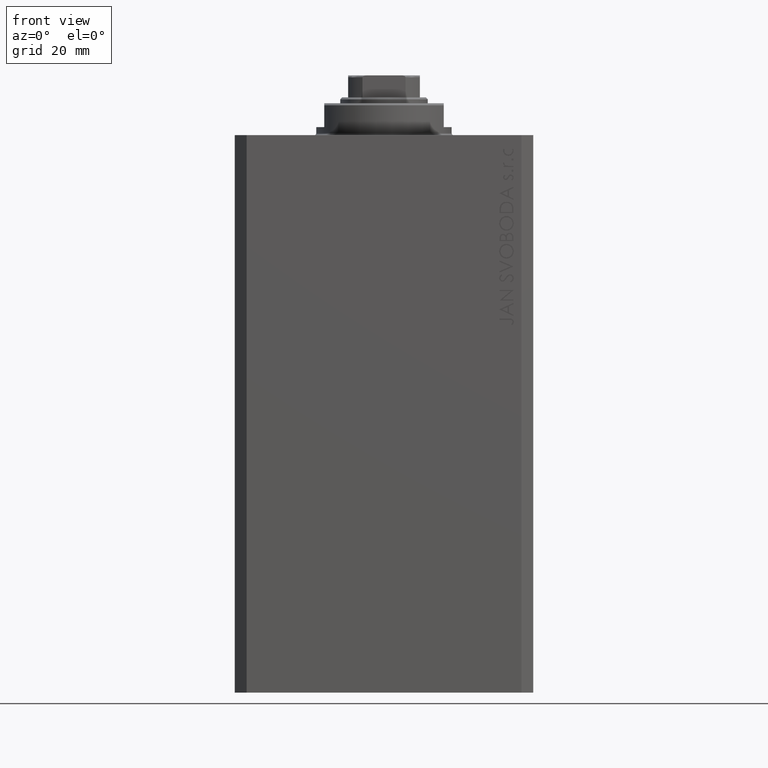
[diagram: clean part render]
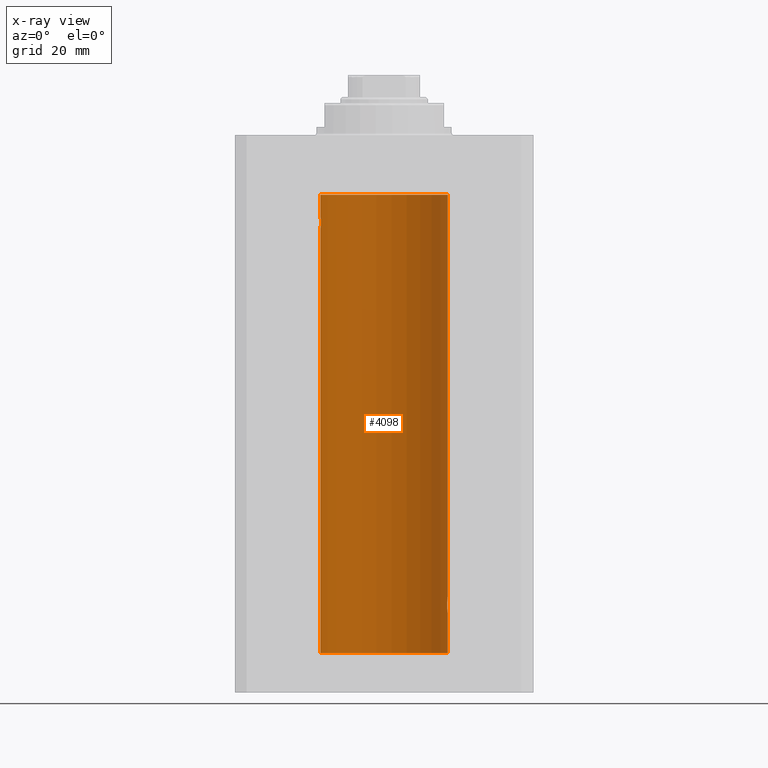
[diagram: x-ray — body ghosted, one internal face saturated and labeled with its STEP entity id]
A machine part, front view, then the same camera in x-ray: the body is ghosted and one INTERNAL B-rep face — a face not visible from any outside direction — is saturated and labeled: STEP entity #4098.
In plain terms, the highlighted cylindrical surface (partial cylindrical patch) has radius 16 mm, axis along (0, 0, 1).
Its self-contained STEP definition (entity closure, byte-faithful):
#449 = EDGE_CURVE ( 'NONE', #32171, #32170, #32908, .T. ) ;
#874 = CARTESIAN_POINT ( 'NONE',  ( -15.94564302722881877, 1.321075116345886924, -23.50737160312428742 ) ) ;
#1481 = VERTEX_POINT ( 'NONE', #32381 ) ;
#2007 = CARTESIAN_POINT ( 'NONE',  ( 15.97582125337101999, 0.8876008124445644576, -119.7970409061775143 ) ) ;
#2400 = EDGE_CURVE ( 'NONE', #12641, #32171, #9932, .T. ) ;
#2567 = CIRCLE ( 'NONE', #36698, 16.00000000000000000 ) ;
#2621 = DIRECTION ( 'NONE',  ( -0.000000000000000000, -0.000000000000000000, 1.000000000000000000 ) ) ;
#2801 = LINE ( 'NONE', #32411, #42723 ) ;
#2943 = CARTESIAN_POINT ( 'NONE',  ( 15.87450786638750699, 2.000000000000297096, -118.0000000000000284 ) ) ;
#3610 = CARTESIAN_POINT ( 'NONE',  ( 15.99207203775707065, 0.5197027266689088210, -116.0642796061806337 ) ) ;
#3778 = CARTESIAN_POINT ( 'NONE',  ( -16.00000000000000000, 1.959434878635765131E-15, -130.0999999999999943 ) ) ;
#4098 = ADVANCED_FACE ( 'NONE', ( #16263 ), #16492, .F. ) ;
#4211 = CARTESIAN_POINT ( 'NONE',  ( -15.95377581882983442, 1.220169175415122931, -23.59001528100121803 ) ) ;
#4321 = CARTESIAN_POINT ( 'NONE',  ( 15.96887171920781689, 1.003448269354837441, -116.2650518254207412 ) ) ;
#4451 = CARTESIAN_POINT ( 'NONE',  ( -15.87616016863256618, 1.987008272775798723, -22.26251583007899626 ) ) ;
#4689 = CARTESIAN_POINT ( 'NONE',  ( -15.92099550861380131, 1.598790766515155282, -20.77043888260214644 ) ) ;
#5418 = AXIS2_PLACEMENT_3D ( 'NONE', #41581, #19832, #34178 ) ;
#5598 = CARTESIAN_POINT ( 'NONE',  ( 15.99999999999999645, 0.1323149458028788361, -120.0000000000000426 ) ) ;
#5921 = DIRECTION ( 'NONE',  ( 0.000000000000000000, 0.000000000000000000, 1.000000000000000000 ) ) ;
#6050 = CARTESIAN_POINT ( 'NONE',  ( 16.00000000000000000, 0.000000000000000000, -130.0999999999999943 ) ) ;
#6057 = CARTESIAN_POINT ( 'NONE',  ( 15.96893716441426214, 1.002454028984434808, -119.7355604244121707 ) ) ;
#6282 = VERTEX_POINT ( 'NONE', #41641 ) ;
#7815 = LINE ( 'NONE', #40052, #20762 ) ;
#8032 = CARTESIAN_POINT ( 'NONE',  ( -15.88709929148890510, 1.898058445420892637, -22.64386968033013403 ) ) ;
#8267 = CARTESIAN_POINT ( 'NONE',  ( -15.97587307151818159, 0.8866640484200133399, -23.79749928605040665 ) ) ;
#8726 = CARTESIAN_POINT ( 'NONE',  ( -15.96885838080210362, 1.003662148334370174, -23.73482670674955486 ) ) ;
#9106 = ORIENTED_EDGE ( 'NONE', *, *, #449, .F. ) ;
#9686 = VERTEX_POINT ( 'NONE', #11402 ) ;
#9932 = CIRCLE ( 'NONE', #30536, 16.00000000000000000 ) ;
#9968 = DIRECTION ( 'NONE',  ( -0.000000000000000000, -0.000000000000000000, 1.000000000000000000 ) ) ;
#10768 = CARTESIAN_POINT ( 'NONE',  ( 15.92911104305801828, 1.507378839264603476, -116.6789366429541701 ) ) ;
#11369 = CARTESIAN_POINT ( 'NONE',  ( -15.92908549642226745, 1.507649250492136606, -23.32075824828932653 ) ) ;
#11402 = CARTESIAN_POINT ( 'NONE',  ( 16.00000000000000000, 0.000000000000000000, -15.00000000000000000 ) ) ;
#12024 = CARTESIAN_POINT ( 'NONE',  ( 15.87450786638750699, 2.000000000000297096, -118.0000000000000284 ) ) ;
#12212 = ORIENTED_EDGE ( 'NONE', *, *, #44594, .F. ) ;
#12280 = CARTESIAN_POINT ( 'NONE',  ( 15.90454527605181667, 1.748004143318092174, -119.0061673938155309 ) ) ;
#12308 = CARTESIAN_POINT ( 'NONE',  ( -15.87450182760079542, 2.000047931387149092, -22.12985308350499380 ) ) ;
#12641 = VERTEX_POINT ( 'NONE', #6050 ) ;
#14954 = CARTESIAN_POINT ( 'NONE',  ( -15.90457341008072412, 1.747750603376305278, -20.99340818440418488 ) ) ;
#15060 = CARTESIAN_POINT ( 'NONE',  ( 15.92095407913750726, 1.590131347295332009, -116.7799846904292167 ) ) ;
#15428 = CARTESIAN_POINT ( 'NONE',  ( -15.99834873924246104, 0.2632563459770838055, -23.98690924832126115 ) ) ;
#15895 = CARTESIAN_POINT ( 'NONE',  ( -15.99211983514074298, 0.5181437283162074747, -20.06388673317935911 ) ) ;
#16216 = EDGE_CURVE ( 'NONE', #9686, #41579, #2567, .T. ) ;
#16263 = FACE_OUTER_BOUND ( 'NONE', #27319, .T. ) ;
#16492 = CYLINDRICAL_SURFACE ( 'NONE', #5418, 16.00000000000000000 ) ;
#16846 = VERTEX_POINT ( 'NONE', #12024 ) ;
#17918 = CARTESIAN_POINT ( 'NONE',  ( 16.00000000000000000, -2.738688404655786685E-23, -116.0000000000000142 ) ) ;
#18000 = CARTESIAN_POINT ( 'NONE',  ( 16.00000000000000000, -2.738688404655786685E-23, -116.0000000000000142 ) ) ;
#18158 = CARTESIAN_POINT ( 'NONE',  ( 15.90582997788426312, 1.734897462761020082, -116.9964633285505187 ) ) ;
#18394 = CARTESIAN_POINT ( 'NONE',  ( 15.87450786638750699, 2.000000000000297096, -118.0000000000000284 ) ) ;
#18520 = CARTESIAN_POINT ( 'NONE',  ( -15.95382484008323409, 1.219564485341772198, -20.40948495147901554 ) ) ;
#18634 = CARTESIAN_POINT ( 'NONE',  ( 15.98747899434752817, 0.6443623600228916004, -116.1021155051082729 ) ) ;
#19228 = CARTESIAN_POINT ( 'NONE',  ( -15.99836091803360283, 0.2623312429553310565, -20.01299475991587329 ) ) ;
#19788 = ORIENTED_EDGE ( 'NONE', *, *, #16216, .T. ) ;
#19832 = DIRECTION ( 'NONE',  ( -0.000000000000000000, -0.000000000000000000, 1.000000000000000000 ) ) ;
#20037 = CARTESIAN_POINT ( 'NONE',  ( -16.00000000000000000, 1.959434878635765131E-15, -15.00000000000000000 ) ) ;
#20134 = CARTESIAN_POINT ( 'NONE',  ( 15.99836014839681830, 0.2623923436743452187, -119.9869991933481828 ) ) ;
#20599 = CARTESIAN_POINT ( 'NONE',  ( 15.94550883254178331, 1.322613426523511881, -119.5058849502901666 ) ) ;
#20762 = VECTOR ( 'NONE', #33593, 1000.000000000000000 ) ;
#21439 = DIRECTION ( 'NONE',  ( -0.000000000000000000, -0.000000000000000000, 1.000000000000000000 ) ) ;
#21506 = CARTESIAN_POINT ( 'NONE',  ( 15.97588373855009536, 0.8864683965309503311, -116.2024065562767561 ) ) ;
#21548 = VERTEX_POINT ( 'NONE', #18000 ) ;
#22214 = CARTESIAN_POINT ( 'NONE',  ( 15.88249567060696243, 1.935716055827872539, -117.4802781602162156 ) ) ;
#23319 = CARTESIAN_POINT ( 'NONE',  ( -16.00000000000000000, 1.959434851239607631E-15, -23.99999999999999645 ) ) ;
#23437 = EDGE_CURVE ( 'NONE', #1481, #16846, #34838, .T. ) ;
#23947 = CARTESIAN_POINT ( 'NONE',  ( 15.88135773388169092, 1.947448446433282854, -118.5247245543324794 ) ) ;
#24023 = EDGE_CURVE ( 'NONE', #6282, #32170, #36011, .T. ) ;
#24179 = CARTESIAN_POINT ( 'NONE',  ( 16.00000000000000000, 3.524002214059393877E-15, -120.0000000000000284 ) ) ;
#24479 = CARTESIAN_POINT ( 'NONE',  ( -16.00000000000000000, 1.959434878635765131E-15, -130.0999999999999943 ) ) ;
#24573 = LINE ( 'NONE', #39613, #27040 ) ;
#25277 = VECTOR ( 'NONE', #21439, 1000.000000000000000 ) ;
#25339 = CARTESIAN_POINT ( 'NONE',  ( 16.00000000000000000, 0.1305637488590863926, -116.0000000000000000 ) ) ;
#25884 = EDGE_CURVE ( 'NONE', #21548, #9686, #2801, .T. ) ;
#26414 = CARTESIAN_POINT ( 'NONE',  ( -15.88247600692092831, 1.935876924222084350, -22.51913097710111700 ) ) ;
#26877 = CARTESIAN_POINT ( 'NONE',  ( -15.90580292899658055, 1.735145127817749655, -23.00311247035039486 ) ) ;
#27040 = VECTOR ( 'NONE', #2621, 1000.000000000000000 ) ;
#27319 = EDGE_LOOP ( 'NONE', ( #9106, #39036, #27664, #32996, #44450, #44440, #19788, #12212, #47229 ) ) ;
#27549 = CARTESIAN_POINT ( 'NONE',  ( 15.92096875784782739, 1.599058044721133331, -119.2292259384397113 ) ) ;
#27664 = ORIENTED_EDGE ( 'NONE', *, *, #35063, .T. ) ;
#28088 = B_SPLINE_CURVE_WITH_KNOTS ( 'NONE', 3,
 ( #18394, #36790, #28693, #22214, #29163, #32734, #18158, #15060, #10768, #32978, #43240, #4321, #21506, #18634, #3610, #29400, #25339, #17918 ),
 .UNSPECIFIED., .F., .F.,
 ( 4, 2, 2, 2, 2, 2, 2, 2, 4 ),
 ( 0.003130250677538718058, 0.003521348247420690372, 0.003912445817302662686, 0.004303543387184635000, 0.004694640957066607313, 0.005085738526948579627, 0.005476836096830552808, 0.005867933666712525122, 0.006259031236594497435 ),
 .UNSPECIFIED. ) ;
#28693 = CARTESIAN_POINT ( 'NONE',  ( 15.87617168140110380, 1.986916736633999037, -117.7368093443493962 ) ) ;
#29163 = CARTESIAN_POINT ( 'NONE',  ( 15.88712192135845491, 1.897869642555071179, -117.3555794672821264 ) ) ;
#29400 = CARTESIAN_POINT ( 'NONE',  ( 15.99834953062734222, 0.2631943783489354982, -116.0130845296388316 ) ) ;
#29521 = CARTESIAN_POINT ( 'NONE',  ( -15.96895041604535770, 1.002241074716284874, -20.26431901501738153 ) ) ;
#29762 = CARTESIAN_POINT ( 'NONE',  ( -16.00000000000000000, 8.139613661842072923E-16, -20.00000000000000000 ) ) ;
#30230 = CARTESIAN_POINT ( 'NONE',  ( -15.98744362947834929, 0.6452446332038160870, -20.10241129944407490 ) ) ;
#30464 = CARTESIAN_POINT ( 'NONE',  ( -15.87451999516785506, 1.999903730784163169, -21.73808537237744432 ) ) ;
#30536 = AXIS2_PLACEMENT_3D ( 'NONE', #45546, #5921, #41968 ) ;
#31133 = CARTESIAN_POINT ( 'NONE',  ( 15.95380611548778660, 1.219810915946573759, -119.5903287070132706 ) ) ;
#32170 = VERTEX_POINT ( 'NONE', #23319 ) ;
#32171 = VERTEX_POINT ( 'NONE', #24479 ) ;
#32381 = CARTESIAN_POINT ( 'NONE',  ( 16.00000000000000000, 3.524002214059393877E-15, -120.0000000000000284 ) ) ;
#32411 = CARTESIAN_POINT ( 'NONE',  ( 16.00000000000000000, 0.000000000000000000, -130.0999999999999943 ) ) ;
#32734 = CARTESIAN_POINT ( 'NONE',  ( 15.89878974374255449, 1.797508500259969777, -117.1133488878856781 ) ) ;
#32908 = LINE ( 'NONE', #3778, #25277 ) ;
#32978 = CARTESIAN_POINT ( 'NONE',  ( 15.94566414814287469, 1.320819617421907788, -116.4924075827249226 ) ) ;
#32996 = ORIENTED_EDGE ( 'NONE', *, *, #23437, .T. ) ;
#33230 = CARTESIAN_POINT ( 'NONE',  ( 0.000000000000000000, 0.000000000000000000, -15.00000000000000000 ) ) ;
#33593 = DIRECTION ( 'NONE',  ( -0.000000000000000000, -0.000000000000000000, 1.000000000000000000 ) ) ;
#33808 = CARTESIAN_POINT ( 'NONE',  ( -16.00000000000000000, 1.959434851239607631E-15, -23.99999999999999645 ) ) ;
#34039 = CARTESIAN_POINT ( 'NONE',  ( -15.88137861827787134, 1.947280337074169587, -21.47468243540596333 ) ) ;
#34178 = DIRECTION ( 'NONE',  ( 1.000000000000000000, 0.000000000000000000, 0.000000000000000000 ) ) ;
#34704 = CARTESIAN_POINT ( 'NONE',  ( 15.98743782203464825, 0.6453927552190293904, -119.8975403585268396 ) ) ;
#34838 = B_SPLINE_CURVE_WITH_KNOTS ( 'NONE', 3,
 ( #24179, #5598, #20134, #44988, #34704, #2007, #6057, #31133, #20599, #27549, #12280, #23947, #38518, #2943 ),
 .UNSPECIFIED., .F., .F.,
 ( 4, 2, 2, 2, 2, 2, 4 ),
 ( 3.424160547694500162E-18, 0.0003912813346923356916, 0.0007825626693846680221, 0.001173844004077000082, 0.001565125338769331924, 0.002347688008154024883, 0.003130250677538718058 ),
 .UNSPECIFIED. ) ;
#35063 = EDGE_CURVE ( 'NONE', #12641, #1481, #7815, .T. ) ;
#36011 = B_SPLINE_CURVE_WITH_KNOTS ( 'NONE', 3,
 ( #29762, #37388, #19228, #15895, #30230, #44780, #29521, #18520, #44547, #4689, #14954, #34039, #30464, #12308, #4451, #26414, #8032, #44075, #26877, #40968, #11369, #874, #4211, #8726, #8267, #36676, #40502, #15428, #36919, #33808 ),
 .UNSPECIFIED., .F., .F.,
 ( 4, 2, 2, 2, 2, 2, 2, 2, 2, 2, 2, 2, 2, 2, 4 ),
 ( 7.909002969168862706E-19, 0.0003911894522871180884, 0.0007823789045742353095, 0.001173568356861352802, 0.001564757809148469968, 0.002347136713722698664, 0.003129515618296926493, 0.003520705070584046262, 0.003911894522871165597, 0.004303083975158284932, 0.004694273427445404268, 0.005085462879732523603, 0.005476652332019642938, 0.005867841784306762273, 0.006259031236593881609 ),
 .UNSPECIFIED. ) ;
#36676 = CARTESIAN_POINT ( 'NONE',  ( -15.98747331501412461, 0.6445079780200578812, -23.89783726498894723 ) ) ;
#36698 = AXIS2_PLACEMENT_3D ( 'NONE', #33230, #39915, #46186 ) ;
#36790 = CARTESIAN_POINT ( 'NONE',  ( 15.87450786638751055, 2.000000000000297984, -117.8694386949729704 ) ) ;
#36919 = CARTESIAN_POINT ( 'NONE',  ( -16.00000000000000000, 0.1305944228192325030, -23.99999999999999645 ) ) ;
#37388 = CARTESIAN_POINT ( 'NONE',  ( -15.99999999999999645, 0.1322838750249263340, -20.00000000000000000 ) ) ;
#38518 = CARTESIAN_POINT ( 'NONE',  ( 15.87450786638751410, 2.000000000000297096, -118.2612453035981872 ) ) ;
#39036 = ORIENTED_EDGE ( 'NONE', *, *, #2400, .F. ) ;
#39613 = CARTESIAN_POINT ( 'NONE',  ( -16.00000000000000000, 1.959434878635765131E-15, -130.0999999999999943 ) ) ;
#39915 = DIRECTION ( 'NONE',  ( 0.000000000000000000, 0.000000000000000000, 1.000000000000000000 ) ) ;
#40052 = CARTESIAN_POINT ( 'NONE',  ( 16.00000000000000000, 0.000000000000000000, -130.0999999999999943 ) ) ;
#40502 = CARTESIAN_POINT ( 'NONE',  ( -15.99206840425678955, 0.5198215460038748681, -23.93569052926128649 ) ) ;
#40968 = CARTESIAN_POINT ( 'NONE',  ( -15.92092783521423272, 1.590393755196006786, -23.21967657442277755 ) ) ;
#41579 = VERTEX_POINT ( 'NONE', #20037 ) ;
#41581 = CARTESIAN_POINT ( 'NONE',  ( 0.000000000000000000, 0.000000000000000000, -130.0999999999999943 ) ) ;
#41641 = CARTESIAN_POINT ( 'NONE',  ( -16.00000000000000000, 8.139613661842072923E-16, -20.00000000000000000 ) ) ;
#41968 = DIRECTION ( 'NONE',  ( 1.000000000000000000, 0.000000000000000000, 0.000000000000000000 ) ) ;
#42723 = VECTOR ( 'NONE', #9968, 1000.000000000000000 ) ;
#43240 = CARTESIAN_POINT ( 'NONE',  ( 15.95379436193629985, 1.219925354616377966, -116.4098000984431849 ) ) ;
#44075 = CARTESIAN_POINT ( 'NONE',  ( -15.89876304682112362, 1.797743958659264507, -22.88617757057269841 ) ) ;
#44440 = ORIENTED_EDGE ( 'NONE', *, *, #25884, .T. ) ;
#44450 = ORIENTED_EDGE ( 'NONE', *, *, #46728, .T. ) ;
#44547 = CARTESIAN_POINT ( 'NONE',  ( -15.94553003295877680, 1.322357532253827461, -20.49389287531754889 ) ) ;
#44594 = EDGE_CURVE ( 'NONE', #6282, #41579, #24573, .T. ) ;
#44780 = CARTESIAN_POINT ( 'NONE',  ( -15.97583181162461052, 0.8874076679346778462, -20.20286585251778888 ) ) ;
#44988 = CARTESIAN_POINT ( 'NONE',  ( 15.99211620657850474, 0.5182628822511399225, -119.9360834489417442 ) ) ;
#45546 = CARTESIAN_POINT ( 'NONE',  ( 0.000000000000000000, 0.000000000000000000, -130.0999999999999943 ) ) ;
#46186 = DIRECTION ( 'NONE',  ( 1.000000000000000000, 0.000000000000000000, 0.000000000000000000 ) ) ;
#46728 = EDGE_CURVE ( 'NONE', #16846, #21548, #28088, .T. ) ;
#47229 = ORIENTED_EDGE ( 'NONE', *, *, #24023, .T. ) ;